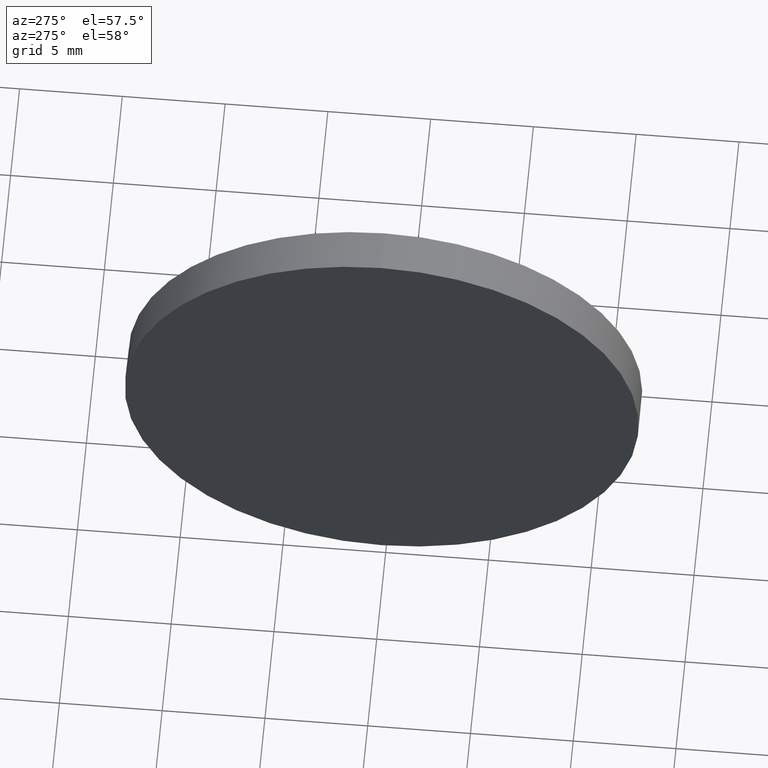
[diagram: clean part render]
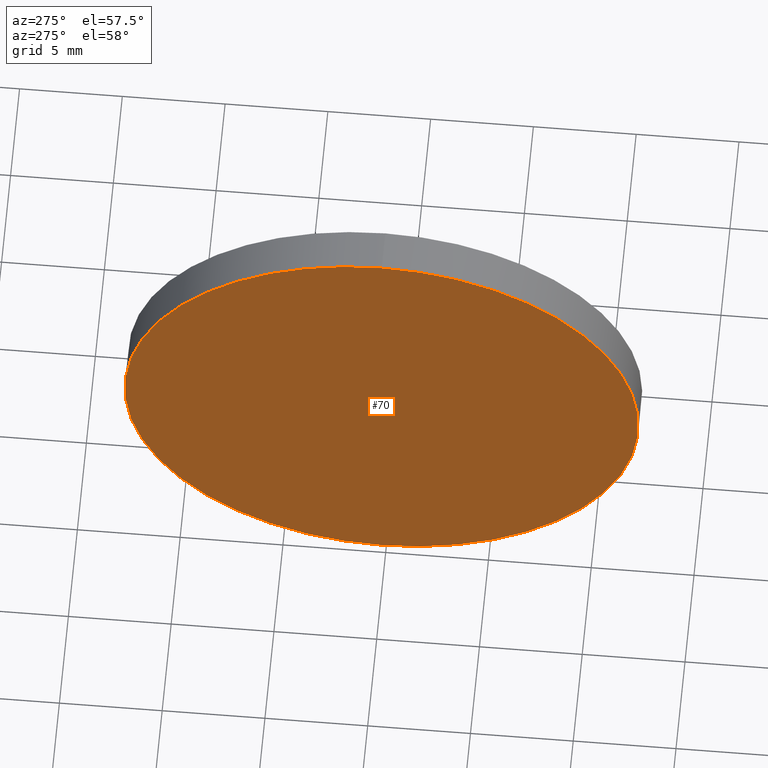
[diagram: same view with one face highlighted and labeled with its STEP entity id]
A machine part, auxiliary view. The second image highlights one B-rep face of the part: STEP entity #70.
In plain terms, the highlighted planar face has unit normal (1, 0, 0).
Its self-contained STEP definition (entity closure, byte-faithful):
#5 = AXIS2_PLACEMENT_3D ( 'NONE', #177, #33, #85 ) ;
#9 = CIRCLE ( 'NONE', #5, 12.49999999999999600 ) ;
#14 = EDGE_LOOP ( 'NONE', ( #171, #180 ) ) ;
#33 = DIRECTION ( 'NONE',  ( -1.000000000000000000, -0.0000000000000000000, -0.0000000000000000000 ) ) ;
#37 = DIRECTION ( 'NONE',  ( 0.0000000000000000000, 0.0000000000000000000, 1.000000000000000000 ) ) ;
#49 = CARTESIAN_POINT ( 'NONE',  ( 395.0637823262245500, 95.20191544312206100, 12.49999999999999600 ) ) ;
#50 = VERTEX_POINT ( 'NONE', #143 ) ;
#67 = AXIS2_PLACEMENT_3D ( 'NONE', #98, #132, #111 ) ;
#68 = VERTEX_POINT ( 'NONE', #49 ) ;
#70 = ADVANCED_FACE ( 'NONE', ( #116 ), #76, .F. ) ;
#72 = CIRCLE ( 'NONE', #146, 12.49999999999999600 ) ;
#76 = PLANE ( 'NONE',  #67 ) ;
#85 = DIRECTION ( 'NONE',  ( 0.0000000000000000000, 0.0000000000000000000, 1.000000000000000000 ) ) ;
#90 = CARTESIAN_POINT ( 'NONE',  ( 395.0637823262245500, 95.20191544312206100, 0.0000000000000000000 ) ) ;
#98 = CARTESIAN_POINT ( 'NONE',  ( 395.0637823262245500, 95.20191544312206100, 0.0000000000000000000 ) ) ;
#101 = DIRECTION ( 'NONE',  ( -1.000000000000000000, -0.0000000000000000000, -0.0000000000000000000 ) ) ;
#111 = DIRECTION ( 'NONE',  ( 0.0000000000000000000, 0.0000000000000000000, -1.000000000000000000 ) ) ;
#116 = FACE_OUTER_BOUND ( 'NONE', #14, .T. ) ;
#121 = EDGE_CURVE ( 'NONE', #68, #50, #9, .T. ) ;
#132 = DIRECTION ( 'NONE',  ( 1.000000000000000000, 0.0000000000000000000, 0.0000000000000000000 ) ) ;
#143 = CARTESIAN_POINT ( 'NONE',  ( 395.0637823262245500, 95.20191544312206100, -12.49999999999999600 ) ) ;
#146 = AXIS2_PLACEMENT_3D ( 'NONE', #90, #101, #37 ) ;
#153 = EDGE_CURVE ( 'NONE', #50, #68, #72, .T. ) ;
#171 = ORIENTED_EDGE ( 'NONE', *, *, #121, .T. ) ;
#177 = CARTESIAN_POINT ( 'NONE',  ( 395.0637823262245500, 95.20191544312206100, 0.0000000000000000000 ) ) ;
#180 = ORIENTED_EDGE ( 'NONE', *, *, #153, .T. ) ;